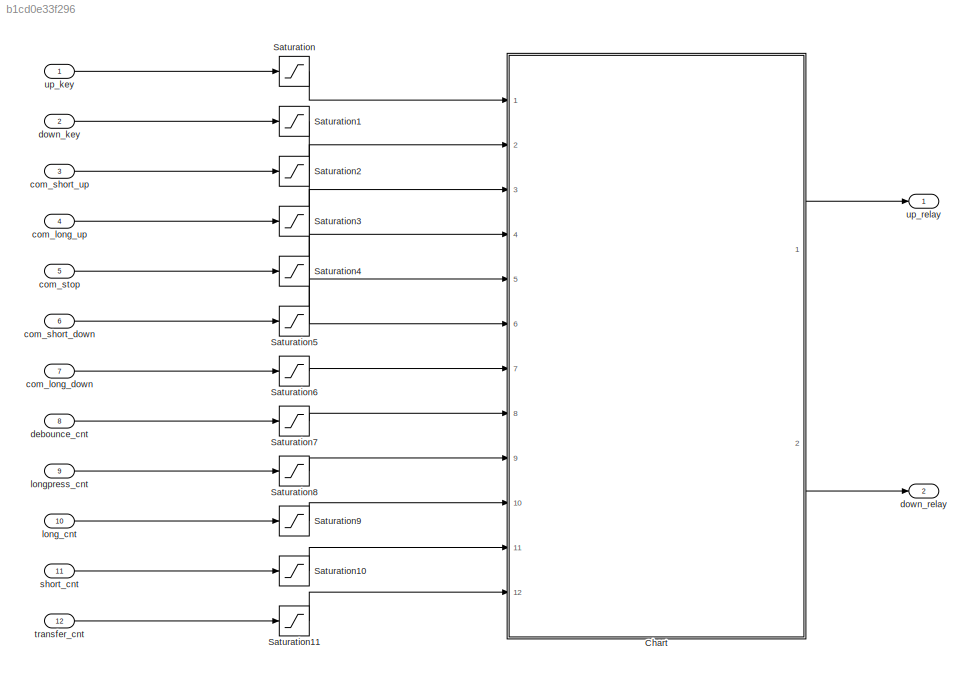
MODEL slx_b1cd0e33f296
KIND model
CONFIG AbsTol = auto
CONFIG EnableMultiTasking = off
CONFIG FixedStep = auto
CONFIG MaxStep = auto
CONFIG MinStep = auto
CONFIG RelTol = 1e-3
CONFIG SampleTimeConstraint = Unconstrained
CONFIG SolverName = VariableStepAuto
CONFIG StartTime = 0.0
CONFIG StopTime = inf
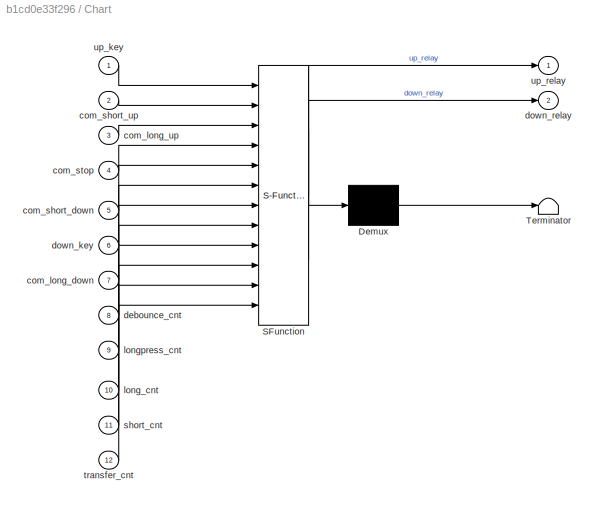
BLOCK [SubSystem] Chart
  ErrorFcn = Stateflow.Translate.translate
  PermitHierarchicalResolution = ExplicitOnly
  PortSchema = {"entries":[{"content":{"sides":[{"content":{"connectorIds":["In1","In6","In2","In3","In4","In5","In7","In8","In9","In10","In11","In12"]},"type":"ConnectorPlacement.EquallySpacedRectSide","uuid":"4c20fa99-1adf-4f22-ae93-c6186f058e35"},{"content":{"connectorIds":["Out1","Out2"],"side":"RIGHT"},"type":"ConnectorPlacement.EquallySpacedRectSide","uuid":"7e4b4d75-813d-4fac-a5e7-b1188569f7b1"},{"content...<+316ch>
  Ports = [12, 2]
  RequestExecContextInheritance = off
  SFBlockType = Chart
  TreatAsAtomicUnit = on
BLOCK [Demux] Chart/ Demux 
  Outputs = 1
  Ports = [1, 1]
BLOCK [S-Function] Chart/ SFunction 
  EnableBusSupport = on
  FunctionName = sf_sfun
  PortCounts = [12 3]
  Ports = [12, 3]
  SFcnIsStateOwnerBlock = off
  SFunctionDeploymentMode = off
  Tag = Stateflow S-Function 3
BLOCK [Terminator] Chart/ Terminator 
BLOCK [Inport] Chart/com_long_down
  Port = 7
BLOCK [Inport] Chart/com_long_up
  Port = 3
BLOCK [Inport] Chart/com_short_down
  Port = 5
BLOCK [Inport] Chart/com_short_up
  Port = 2
BLOCK [Inport] Chart/com_stop
  Port = 4
BLOCK [Inport] Chart/debounce_cnt
  Port = 8
BLOCK [Inport] Chart/down_key
  Port = 6
BLOCK [Outport] Chart/down_relay
  Port = 2
BLOCK [Inport] Chart/long_cnt
  Port = 10
BLOCK [Inport] Chart/longpress_cnt
  Port = 9
BLOCK [Inport] Chart/short_cnt
  Port = 11
BLOCK [Inport] Chart/transfer_cnt
  Port = 12
BLOCK [Inport] Chart/up_key
BLOCK [Outport] Chart/up_relay
BLOCK [Saturate] Saturation
  LowerLimit = 0
  UpperLimit = 1
BLOCK [Saturate] Saturation1
  LowerLimit = 0
  UpperLimit = 1
BLOCK [Saturate] Saturation10
  LowerLimit = 20
  UpperLimit = 50
BLOCK [Saturate] Saturation11
  LowerLimit = 20
  UpperLimit = 50
BLOCK [Saturate] Saturation2
  LowerLimit = 0
  UpperLimit = 1
BLOCK [Saturate] Saturation3
  LowerLimit = 0
  UpperLimit = 1
BLOCK [Saturate] Saturation4
  LowerLimit = 0
  UpperLimit = 1
BLOCK [Saturate] Saturation5
  LowerLimit = 0
  UpperLimit = 1
BLOCK [Saturate] Saturation6
  LowerLimit = 0
  UpperLimit = 1
BLOCK [Saturate] Saturation7
  LowerLimit = 1
  UpperLimit = 4
BLOCK [Saturate] Saturation8
  LowerLimit = 50
  UpperLimit = 200
BLOCK [Saturate] Saturation9
  LowerLimit = 1000
  UpperLimit = 6000
BLOCK [Inport] com_long_down
  OutDataTypeStr = int16
  Port = 7
BLOCK [Inport] com_long_up
  OutDataTypeStr = int16
  Port = 4
BLOCK [Inport] com_short_down
  OutDataTypeStr = int16
  Port = 6
BLOCK [Inport] com_short_up
  OutDataTypeStr = int16
  Port = 3
BLOCK [Inport] com_stop
  OutDataTypeStr = int16
  Port = 5
BLOCK [Inport] debounce_cnt
  OutDataTypeStr = int16
  Port = 8
BLOCK [Inport] down_key
  OutDataTypeStr = int16
  Port = 2
BLOCK [Outport] down_relay
  OutDataTypeStr = int16
  Port = 2
BLOCK [Inport] long_cnt
  OutDataTypeStr = int16
  Port = 10
BLOCK [Inport] longpress_cnt
  OutDataTypeStr = int16
  Port = 9
BLOCK [Inport] short_cnt
  OutDataTypeStr = int16
  Port = 11
BLOCK [Inport] transfer_cnt
  OutDataTypeStr = int16
  Port = 12
BLOCK [Inport] up_key
  OutDataTypeStr = int16
BLOCK [Outport] up_relay
  OutDataTypeStr = int16
LINE Chart:1 -> up_relay:1
LINE Chart:2 -> down_relay:1
LINE Saturation10:1 -> Chart:11
LINE Saturation11:1 -> Chart:12
LINE Saturation1:1 -> Chart:6
LINE Saturation2:1 -> Chart:2
LINE Saturation3:1 -> Chart:3
LINE Saturation4:1 -> Chart:4
LINE Saturation5:1 -> Chart:5
LINE Saturation6:1 -> Chart:7
LINE Saturation7:1 -> Chart:8
LINE Saturation8:1 -> Chart:9
LINE Saturation9:1 -> Chart:10
LINE Saturation:1 -> Chart:1
LINE com_long_down:1 -> Saturation6:1
LINE com_long_up:1 -> Saturation3:1
LINE com_short_down:1 -> Saturation5:1
LINE com_short_up:1 -> Saturation2:1
LINE com_stop:1 -> Saturation4:1
LINE debounce_cnt:1 -> Saturation7:1
LINE down_key:1 -> Saturation1:1
LINE long_cnt:1 -> Saturation9:1
LINE longpress_cnt:1 -> Saturation8:1
LINE short_cnt:1 -> Saturation10:1
LINE transfer_cnt:1 -> Saturation11:1
LINE up_key:1 -> Saturation:1
CHART Chart states=26 transitions=40
  STATE_LABEL 'MOTOR_CTRL'
  STATE_LABEL 'COM_CMD'
  STATE_LABEL 'SHORT_DOWN\nen: send(short_down_event,MOTOR)'
  STATE_LABEL 'IDLE'
  STATE_LABEL 'SHORT_UP\nen: send(short_up_event,MOTOR)'
  STATE_LABEL 'LONG_DOWN\nen: send(long_down_event,MOTOR)'
  STATE_LABEL 'LONG_UP\nen: send(long_up_event,MOTOR)'
  STATE_LABEL 'STOP\nen: send(stop_event,MOTOR)'
  STATE_LABEL '[com_short_up==1]'
  STATE_LABEL '[com_short_down==1]'
  STATE_LABEL '[after(short_cnt,tick)]'
  STATE_LABEL '[after(short_cnt,tick)]'
  STATE_LABEL '[com_long_down==1]'
  STATE_LABEL '[after(short_cnt,tick)]'
  STATE_LABEL '[com_stop==1]'
  STATE_LABEL '[after(short_cnt,tick)]'
  STATE_LABEL '[after(short_cnt,tick)]'
  STATE_LABEL '[com_long_up==1]'
  STATE_LABEL 'KEY_CMD'
  STATE_LABEL 'DOWN_KEY_PRESSED'
  STATE_LABEL 'DOWN_CLICK'
  STATE_LABEL 'DOWN_DEBOUNCE'
  STATE_LABEL 'DOWN_LONGPRESS\nen: send(down_key_long_press,MOTOR)'
  STATE_LABEL '[after(debounce_cnt,tick)]'
  STATE_LABEL '[after(longpress_cnt,tick)]'
  STATE_LABEL 'IDLE'
  STATE_LABEL 'UP_KEY_PRESSED'
  STATE_LABEL 'UP_DEBOUNCE'
  STATE_LABEL 'UP_CLICK'
  STATE_LABEL 'UP_LONGPRESS\nen: send(up_key_long_press,MOTOR)'
  STATE_LABEL '[after(debounce_cnt,tick)]'
  STATE_LABEL '[after(longpress_cnt,tick)]'
  STATE_LABEL '[up_key==1]'
  STATE_LABEL '[down_key==1]'
  STATE_LABEL '[up_key~=1]'
  STATE_LABEL '[down_key~=1]'
  STATE_LABEL '[up_key~=1]{send(up_key_click,MOTOR)}'
  STATE_LABEL '[down_key~=1]{send(down_key_click, MOTOR)}'
  STATE_LABEL '[up_key~=1]'
  STATE_LABEL '[down_key~=1]'
CHART  states=0 transitions=0
